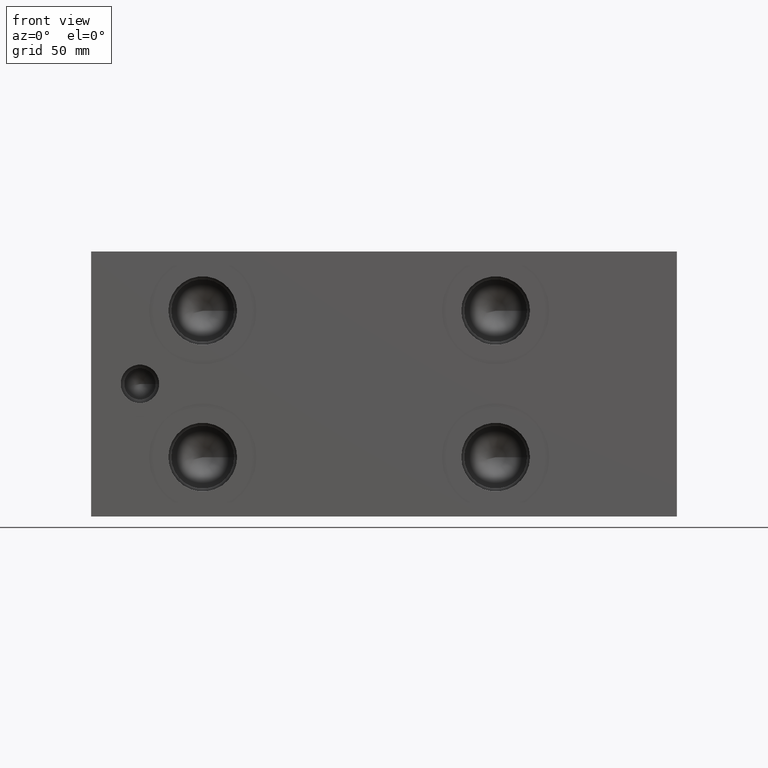
[diagram: clean part render]
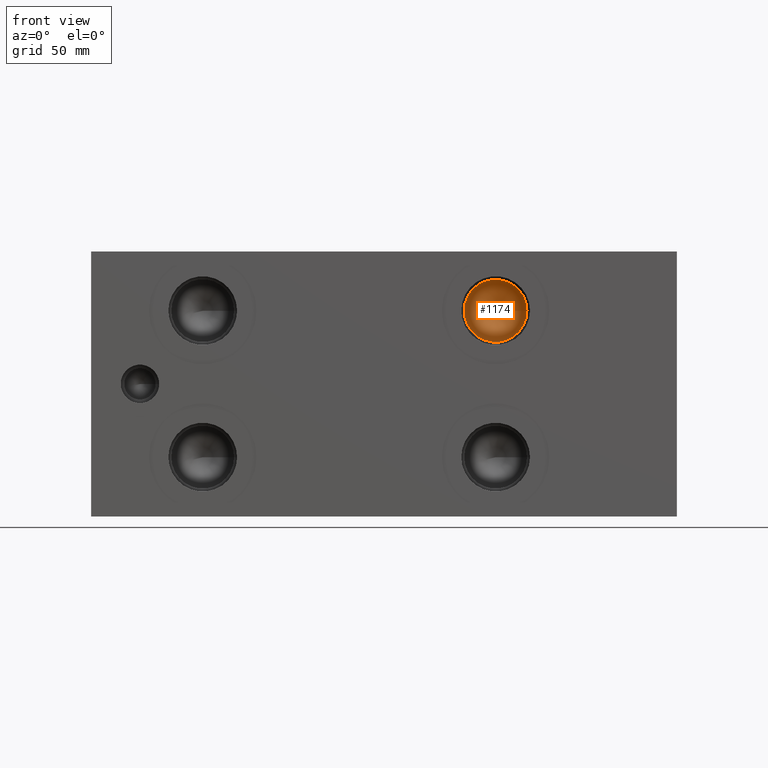
[diagram: same view with one face highlighted and labeled with its STEP entity id]
A machine part, front view. The second image highlights one B-rep face of the part: STEP entity #1174.
In plain terms, the highlighted conical surface has half-angle 60 deg.
Its self-contained STEP definition (entity closure, byte-faithful):
#1158=CARTESIAN_POINT('',(184.150000000000030,36.966645999999997,93.662499999999994));
#1159=DIRECTION('',(0.0,-1.0,0.0));
#1160=DIRECTION('',(1.0,0.0,0.0));
#1161=AXIS2_PLACEMENT_3D('',#1158,#1159,#1160);
#1162=CONICAL_SURFACE('',#1161,7.143750000000004,59.999999912918746);
#1163=CARTESIAN_POINT('',(198.437500000000030,32.842199999999998,93.662499999999994));
#1164=VERTEX_POINT('',#1163);
#1165=CARTESIAN_POINT('',(184.150000000000030,32.842199999999998,93.662499999999994));
#1166=DIRECTION('',(0.0,-1.0,0.0));
#1167=DIRECTION('',(1.0,0.0,0.0));
#1168=AXIS2_PLACEMENT_3D('',#1165,#1166,#1167);
#1169=CIRCLE('',#1168,14.287500000000009);
#1170=EDGE_CURVE('',#1164,#1164,#1169,.T.);
#1171=ORIENTED_EDGE('',*,*,#1170,.T.);
#1172=EDGE_LOOP('',(#1171));
#1173=FACE_OUTER_BOUND('',#1172,.T.);
#1174=ADVANCED_FACE('',(#1173),#1162,.F.);